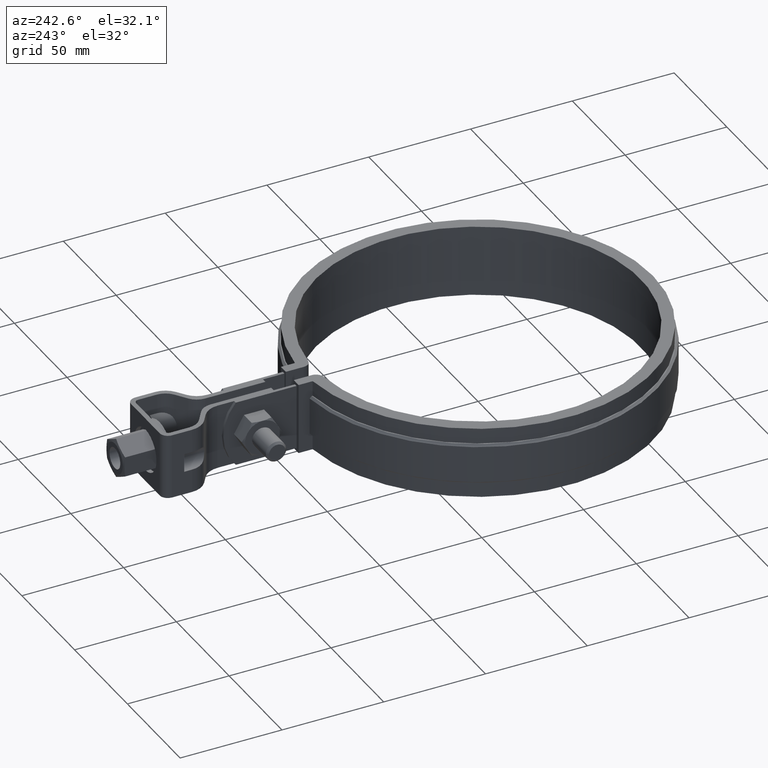
[diagram: clean part render]
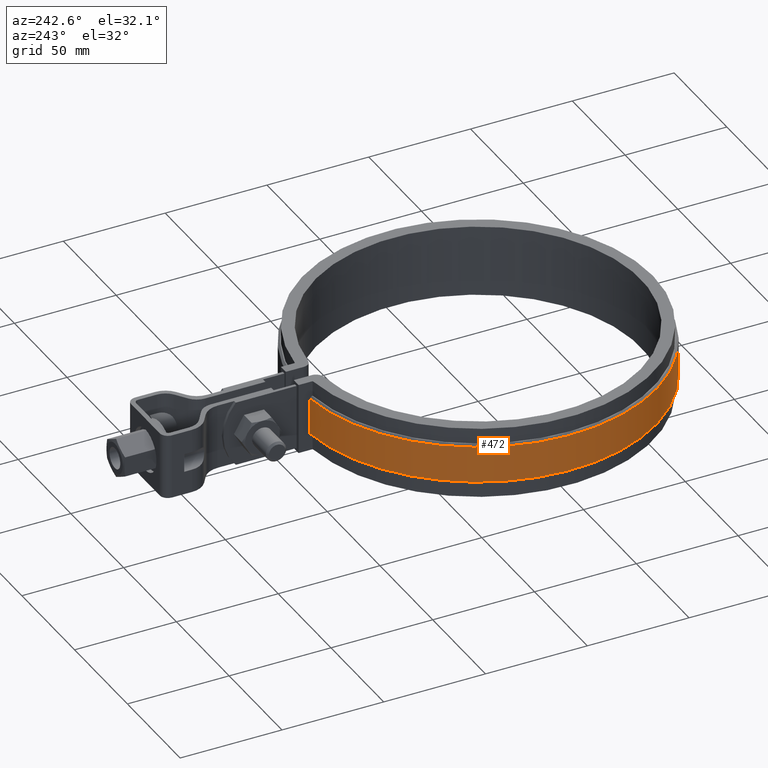
[diagram: same view with one face highlighted and labeled with its STEP entity id]
A machine part, auxiliary view. The second image highlights one B-rep face of the part: STEP entity #472.
In plain terms, the highlighted cylindrical surface (partial cylindrical patch) has radius 87.5 mm, axis along (0, 0, -1).
Its self-contained STEP definition (entity closure, byte-faithful):
#472 = ADVANCED_FACE( '', ( #842 ), #843, .T. );
#842 = FACE_OUTER_BOUND( '', #1977, .T. );
#843 = CYLINDRICAL_SURFACE( '', #1978, 87.5000000000000 );
#1977 = EDGE_LOOP( '', ( #4784, #4785, #4786, #4787 ) );
#1978 = AXIS2_PLACEMENT_3D( '', #4788, #4789, #4790 );
#4784 = ORIENTED_EDGE( '', *, *, #5406, .T. );
#4785 = ORIENTED_EDGE( '', *, *, #5384, .T. );
#4786 = ORIENTED_EDGE( '', *, *, #5364, .F. );
#4787 = ORIENTED_EDGE( '', *, *, #5374, .T. );
#4788 = CARTESIAN_POINT( '', ( 0.000000000000000, 0.000000000000000, -26.0000000000000 ) );
#4789 = DIRECTION( '', ( 0.000000000000000, 0.000000000000000, -1.00000000000000 ) );
#4790 = DIRECTION( '', ( 0.284686447455866, 0.958620689655172, 0.000000000000000 ) );
#5364 = EDGE_CURVE( '', #6114, #6116, #6117, .T. );
#5374 = EDGE_CURVE( '', #6114, #6130, #6132, .F. );
#5384 = EDGE_CURVE( '', #6144, #6116, #6148, .T. );
#5406 = EDGE_CURVE( '', #6130, #6144, #6182, .T. );
#6114 = VERTEX_POINT( '', #9319 );
#6116 = VERTEX_POINT( '', #9324 );
#6117 = LINE( '', #9325, #9326 );
#6130 = VERTEX_POINT( '', #9348 );
#6132 = CIRCLE( '', #9351, 87.5000000000000 );
#6144 = VERTEX_POINT( '', #9367 );
#6148 = CIRCLE( '', #9372, 87.5000000000000 );
#6182 = LINE( '', #9418, #9419 );
#9319 = CARTESIAN_POINT( '', ( -8.40000000000004, 87.0958667216763, -25.0000000000000 ) );
#9324 = CARTESIAN_POINT( '', ( -8.40000000000004, 87.0958667216763, -7.00000000000000 ) );
#9325 = CARTESIAN_POINT( '', ( -8.40000000000004, 87.0958667216763, -26.0000000000000 ) );
#9326 = VECTOR( '', #10033, 1000.00000000000 );
#9348 = CARTESIAN_POINT( '', ( -24.9100641523883, -83.8793103448276, -25.0000000000000 ) );
#9351 = AXIS2_PLACEMENT_3D( '', #10044, #10045, #10046 );
#9367 = CARTESIAN_POINT( '', ( -24.9100641523883, -83.8793103448276, -7.00000000000000 ) );
#9372 = AXIS2_PLACEMENT_3D( '', #10064, #10065, #10066 );
#9418 = CARTESIAN_POINT( '', ( -24.9100641523883, -83.8793103448276, -26.0000000000000 ) );
#9419 = VECTOR( '', #10106, 1000.00000000000 );
#10033 = DIRECTION( '', ( 0.000000000000000, 0.000000000000000, 1.00000000000000 ) );
#10044 = CARTESIAN_POINT( '', ( 0.000000000000000, 0.000000000000000, -25.0000000000000 ) );
#10045 = DIRECTION( '', ( 0.000000000000000, 0.000000000000000, -1.00000000000000 ) );
#10046 = DIRECTION( '', ( -1.00000000000000, 0.000000000000000, 0.000000000000000 ) );
#10064 = CARTESIAN_POINT( '', ( 0.000000000000000, 0.000000000000000, -7.00000000000000 ) );
#10065 = DIRECTION( '', ( 0.000000000000000, 0.000000000000000, -1.00000000000000 ) );
#10066 = DIRECTION( '', ( -1.00000000000000, 0.000000000000000, 0.000000000000000 ) );
#10106 = DIRECTION( '', ( 0.000000000000000, 0.000000000000000, 1.00000000000000 ) );